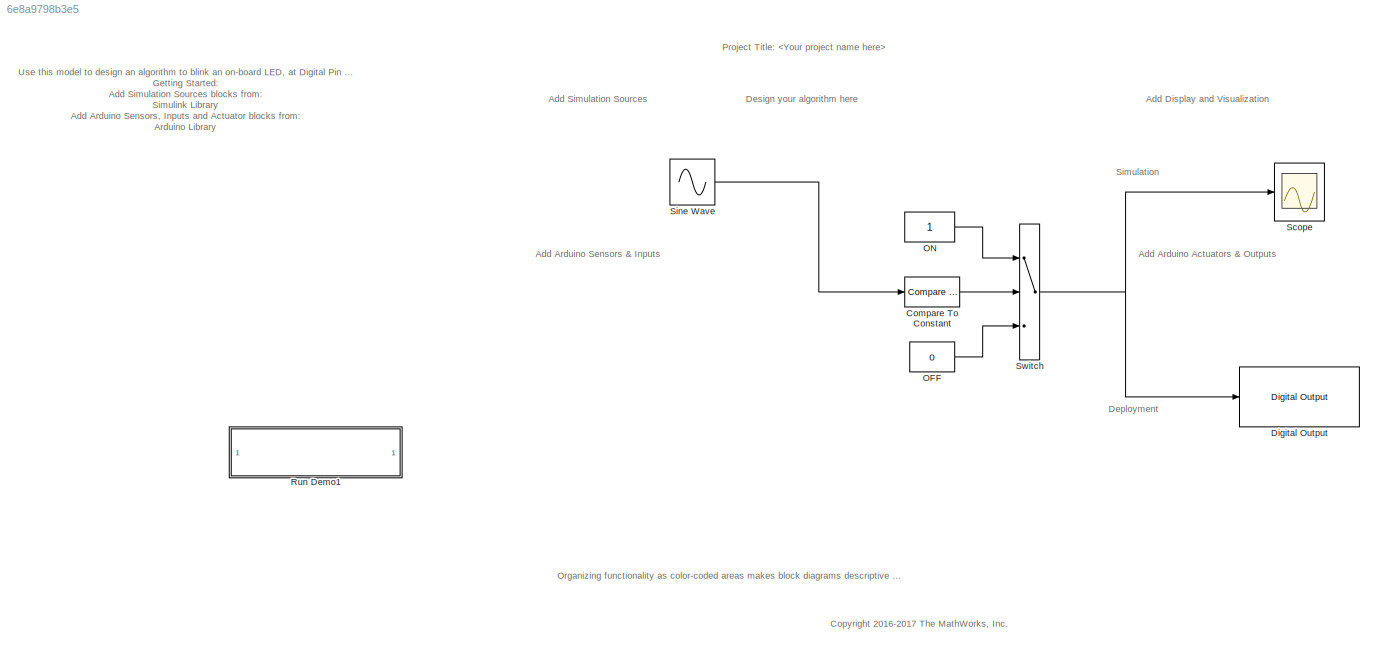
MODEL slx_6e8a9798b3e5
KIND model
CONFIG AbsTol = auto
CONFIG EnableMultiTasking = on
CONFIG FixedStep = auto
CONFIG MaxStep = auto
CONFIG MinStep = auto
CONFIG RelTol = 1e-3
CONFIG SampleTimeConstraint = Unconstrained
CONFIG Solver = ode45
CONFIG SolverName = ode45
CONFIG StartTime = 0.0
CONFIG StopTime = 10.0
BLOCK [Reference] Compare To Constant  REF=simulink/Logic and Bit
Operations/Compare
To Constant
  Ports = [1, 1]
  SourceBlock = simulink/Logic and Bit\nOperations/Compare\nTo Constant
  SourceProductBaseCode = SL
  SourceProductName = Simulink
  SourceType = Compare To Constant
BLOCK [Reference] Digital Output  REF=arduinolib/Digital Output
  Ports = [1]
  SourceBlock = arduinolib/Digital Output
  SourceProductBaseCode = ARDUINO
  SourceProductName = Simulink Support Package for Arduino Hardware
  SourceType = Arduino Digital Output
BLOCK [Constant] OFF
  SampleTime = -1
  Value = 0
BLOCK [Constant] ON
  SampleTime = -1
BLOCK [SubSystem] Run Demo1
  Description = Controls host-side RTDX processing.
  Ports = []
  RequestExecContextInheritance = off
  ShowPortLabels = none
  UserDataPersistent = on
BLOCK [Scope] Scope
  Floating = off
  NumInputPorts = 1
  Ports = [1]
  ScopeSpecificationString = Simulink.scopes.TimeScopeBlockCfg('CurrentConfiguration', extmgr.ConfigurationSet(extmgr.Configuration('Core','General UI',true),extmgr.Configuration('Core','Source UI',true),extmgr.Configuration('Sources','WiredSimulink',true,'DataLoggingLimitDataPoints',true,'DataLoggingSaveFormat','Array','DataLoggingDecimation','1','DataLoggingDecimateData',true),extmgr.Configuration('Visuals','Time Domain',tr...<+1469ch>
BLOCK [Sin] Sine Wave
  Amplitude = 5
  Ports = [0, 1]
  SampleTime = 0.1
  SineType = Sample based
BLOCK [Switch] Switch
  Criteria = u2 > Threshold
  InputSameDT = off
  SaturateOnIntegerOverflow = off
ANNOTATION (root): Organizing functionality as color-coded areas makes block diagrams descriptive and helps to develop increasingly complex algorithms.
ANNOTATION (root): Use this model to design an algorithm to blink an on-board LED, at Digital Pin 13 on the Arduino Hardware. Getting Started: Add Simulation Sources blocks from: Simulink Library Add Arduino Sensors, Inputs and Actuator blocks from: Arduino Library Configure Arduino Hardware: Open Model Configuration Parameters dialog Under the Hardware Implementation option, select the desired Arduino hardware from...<+401ch>
ANNOTATION (root): Add Arduino Actuators & Outputs
ANNOTATION (root): Add Arduino Sensors & Inputs
ANNOTATION (root): Add Display and Visualization
ANNOTATION (root): Add Simulation Sources
ANNOTATION (root): <copyright redacted>
ANNOTATION (root): Deployment
ANNOTATION (root): Design your algorithm here
ANNOTATION (root): Project Title:
ANNOTATION (root): Simulation
LINE Compare To Constant:1 -> Switch:2
LINE OFF:1 -> Switch:3
LINE ON:1 -> Switch:1
LINE Sine Wave:1 -> Compare To Constant:1
NET Switch:1 -> Digital Output:1, Scope:1
note: NET lines group one-source signal fan-out (src -> all destinations, sorted); 1:1 wires keep LINE
